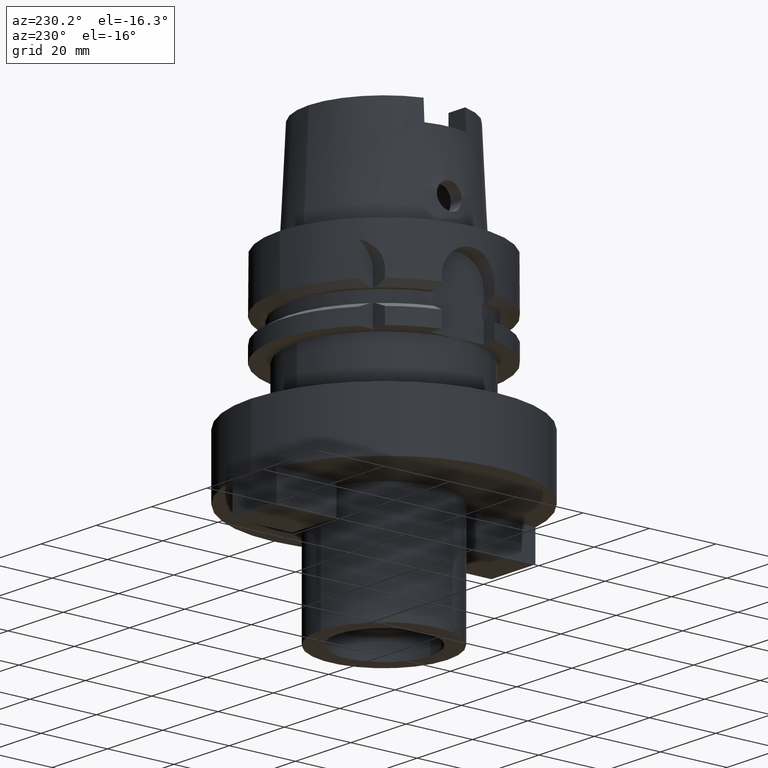
[diagram: clean part render]
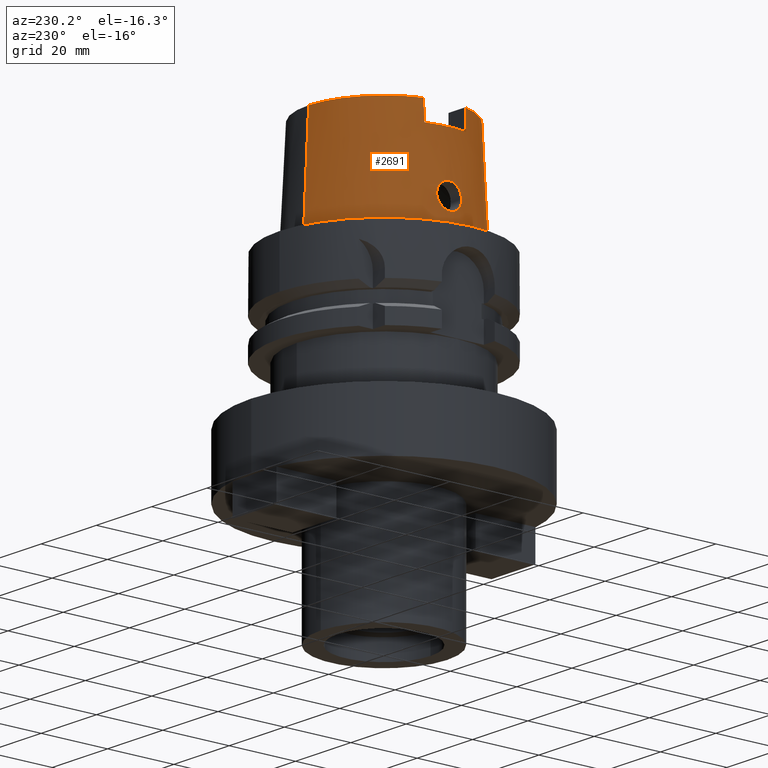
[diagram: same view with one face highlighted and labeled with its STEP entity id]
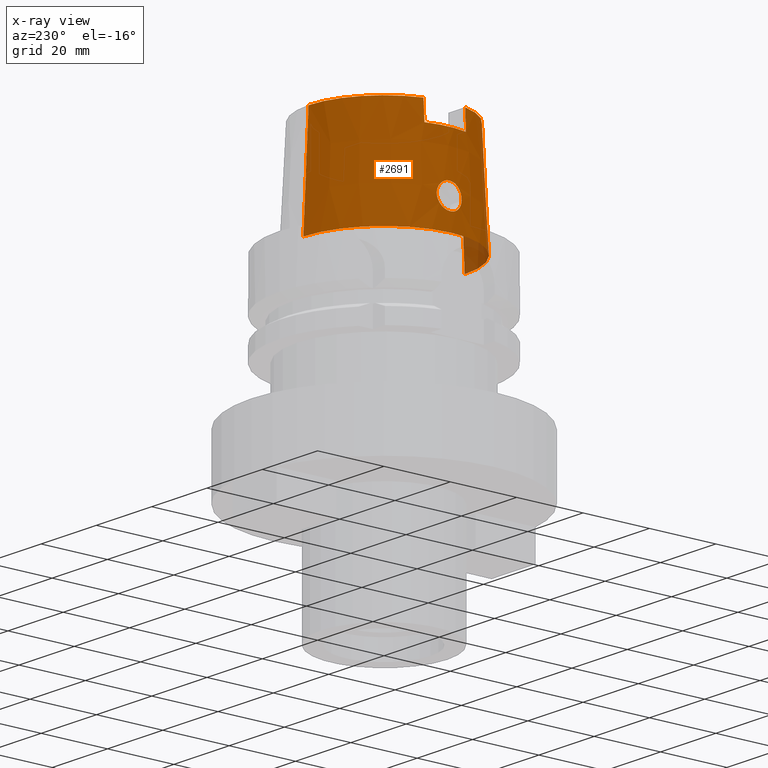
[diagram: x-ray of the same camera — body ghosted, the highlighted face saturated]
A machine part, auxiliary view. The second image highlights one B-rep face of the part: STEP entity #2691.
The next image is the same camera in x-ray: the body ghosted, the highlighted face saturated — about 3% of this face is hidden behind the body in this view.
In plain terms, the highlighted conical surface has half-angle 2.862 deg.
Its self-contained STEP definition (entity closure, byte-faithful):
#61=CARTESIAN_POINT('',(0.E0,0.E0,2.6E1));
#62=DIRECTION('',(0.E0,0.E0,-1.E0));
#63=DIRECTION('',(-9.621752876155E-1,-2.724311213903E-1,0.E0));
#64=AXIS2_PLACEMENT_3D('',#61,#62,#63);
#107=CARTESIAN_POINT('',(0.E0,0.E0,3.2E1));
#108=DIRECTION('',(0.E0,0.E0,-1.E0));
#109=DIRECTION('',(0.E0,-1.E0,0.E0));
#110=AXIS2_PLACEMENT_3D('',#107,#108,#109);
#180=CARTESIAN_POINT('',(0.E0,0.E0,3.2E1));
#181=DIRECTION('',(0.E0,0.E0,-1.E0));
#182=DIRECTION('',(-9.611492277717E-1,2.760292773492E-1,0.E0));
#183=AXIS2_PLACEMENT_3D('',#180,#181,#182);
#212=CARTESIAN_POINT('',(-2.183248717673E1,6.27E0,3.2E1));
#213=CARTESIAN_POINT('',(-2.186717206529E1,6.27E0,3.133327503497E1));
#214=CARTESIAN_POINT('',(-2.193652349223E1,6.27E0,2.999986376692E1));
#215=CARTESIAN_POINT('',(-2.204051301399E1,6.27E0,2.799986375667E1));
#216=CARTESIAN_POINT('',(-2.210981442606E1,6.27E0,2.666660835393E1));
#217=CARTESIAN_POINT('',(-2.214445626683E1,6.27E0,2.6E1));
#222=CARTESIAN_POINT('',(-2.214445626683E1,-6.27E0,2.6E1));
#223=CARTESIAN_POINT('',(-2.210981442606E1,-6.27E0,2.666660835394E1));
#224=CARTESIAN_POINT('',(-2.204051301399E1,-6.27E0,2.799986375668E1));
#225=CARTESIAN_POINT('',(-2.193652349223E1,-6.27E0,2.999986376693E1));
#226=CARTESIAN_POINT('',(-2.186717206529E1,-6.27E0,3.133327503497E1));
#227=CARTESIAN_POINT('',(-2.183248717673E1,-6.27E0,3.2E1));
#232=DIRECTION('',(0.E0,-4.993926899646E-2,-9.987522562738E-1));
#233=VECTOR('',#232,3.203997768114E1);
#234=CARTESIAN_POINT('',(0.E0,-2.271498175923E1,3.2E1));
#235=LINE('',#234,#233);
#239=CARTESIAN_POINT('',(-2.405252611747E1,0.E0,5.25E0));
#240=CARTESIAN_POINT('',(-2.405252611747E1,-3.241869752329E-1,5.25E0));
#241=CARTESIAN_POINT('',(-2.403484461036E1,-9.733222446710E-1,
5.334868901856E0));
#242=CARTESIAN_POINT('',(-2.396118973620E1,-1.880375353758E0,5.706253446326E0));
#243=CARTESIAN_POINT('',(-2.385421498809E1,-2.670800982405E0,6.306074557905E0));
#244=CARTESIAN_POINT('',(-2.373660725416E1,-3.279821761993E0,7.093321028008E0));
#245=CARTESIAN_POINT('',(-2.363225409814E1,-3.664161910177E0,8.016564222647E0));
#246=CARTESIAN_POINT('',(-2.356145186663E1,-3.793008677282E0,9.002632913278E0));
#247=CARTESIAN_POINT('',(-2.353285715397E1,-3.663802011223E0,9.980754357035E0));
#248=CARTESIAN_POINT('',(-2.354373497460E1,-3.286393022892E0,1.089300407602E1));
#249=CARTESIAN_POINT('',(-2.358182791376E1,-2.689315101338E0,1.167447830381E1));
#250=CARTESIAN_POINT('',(-2.362959140874E1,-1.904123066974E0,1.228102099172E1));
#251=CARTESIAN_POINT('',(-2.366788460881E1,-9.851234776865E-1,
1.266332049048E1));
#252=CARTESIAN_POINT('',(-2.367751368058E1,-3.283741913758E-1,1.275E1));
#253=CARTESIAN_POINT('',(-2.367751368058E1,0.E0,1.275E1));
#258=CARTESIAN_POINT('',(-2.367751368058E1,0.E0,1.275E1));
#259=CARTESIAN_POINT('',(-2.367751368058E1,3.273322433053E-1,1.275E1));
#260=CARTESIAN_POINT('',(-2.366793776228E1,9.825397915535E-1,1.266377848569E1));
#261=CARTESIAN_POINT('',(-2.362981346516E1,1.899980568797E0,1.228337985940E1));
#262=CARTESIAN_POINT('',(-2.358191685815E1,2.688069986616E0,1.167640504339E1));
#263=CARTESIAN_POINT('',(-2.354357443612E1,3.288800882523E0,1.088968257964E1));
#264=CARTESIAN_POINT('',(-2.353292925783E1,3.664984661369E0,9.975478486432E0));
#265=CARTESIAN_POINT('',(-2.356154877323E1,3.792202364408E0,9.003353485712E0));
#266=CARTESIAN_POINT('',(-2.363132347804E1,3.666199331831E0,8.028274763309E0));
#267=CARTESIAN_POINT('',(-2.373410501297E1,3.290358863715E0,7.112724654827E0));
#268=CARTESIAN_POINT('',(-2.385148275868E1,2.687596494603E0,6.322355827244E0));
#269=CARTESIAN_POINT('',(-2.395990280332E1,1.893956061740E0,5.712786499526E0));
#270=CARTESIAN_POINT('',(-2.403486346266E1,9.758552384108E-1,5.334739007094E0));
#271=CARTESIAN_POINT('',(-2.405252611747E1,3.244546404483E-1,5.25E0));
#272=CARTESIAN_POINT('',(-2.405252611747E1,0.E0,5.25E0));
#297=DIRECTION('',(0.E0,4.993926899646E-2,-9.987522562738E-1));
#298=VECTOR('',#297,3.203997768114E1);
#299=CARTESIAN_POINT('',(0.E0,2.271498175923E1,3.2E1));
#300=LINE('',#299,#298);
#366=CARTESIAN_POINT('',(0.E0,0.E0,9.094947017729E-13));
#367=DIRECTION('',(0.E0,0.E0,1.E0));
#368=DIRECTION('',(0.E0,1.E0,0.E0));
#369=AXIS2_PLACEMENT_3D('',#366,#367,#368);
#2185=CARTESIAN_POINT('',(-2.214445626683E1,6.27E0,2.6E1));
#2186=VERTEX_POINT('',#2185);
#2187=VERTEX_POINT('',#212);
#2188=CARTESIAN_POINT('',(-2.214445626683E1,-6.27E0,2.6E1));
#2189=VERTEX_POINT('',#2188);
#2190=CARTESIAN_POINT('',(-2.183248717673E1,-6.27E0,3.2E1));
#2191=VERTEX_POINT('',#2190);
#2192=CARTESIAN_POINT('',(0.E0,2.271498175923E1,3.2E1));
#2193=VERTEX_POINT('',#2192);
#2202=CARTESIAN_POINT('',(0.E0,-2.271498175923E1,3.2E1));
#2203=VERTEX_POINT('',#2202);
#2204=CARTESIAN_POINT('',(0.E0,-2.431503482329E1,6.075140390749E-13));
#2205=VERTEX_POINT('',#2204);
#2206=CARTESIAN_POINT('',(0.E0,2.431503482329E1,9.094947017729E-13));
#2207=VERTEX_POINT('',#2206);
#2208=VERTEX_POINT('',#239);
#2209=VERTEX_POINT('',#253);
#2667=CARTESIAN_POINT('',(0.E0,0.E0,1.6E1));
#2668=DIRECTION('',(0.E0,0.E0,-1.E0));
#2669=DIRECTION('',(0.E0,-1.E0,0.E0));
#2670=AXIS2_PLACEMENT_3D('',#2667,#2668,#2669);
#2671=CONICAL_SURFACE('',#2670,2.351500829126E1,2.8625E0);
#2672=ORIENTED_EDGE('',*,*,#2535,.T.);
#2673=ORIENTED_EDGE('',*,*,#2550,.F.);
#2674=ORIENTED_EDGE('',*,*,#2564,.T.);
#2675=ORIENTED_EDGE('',*,*,#2583,.F.);
#2677=ORIENTED_EDGE('',*,*,#2676,.T.);
#2679=ORIENTED_EDGE('',*,*,#2678,.F.);
#2681=ORIENTED_EDGE('',*,*,#2680,.F.);
#2682=ORIENTED_EDGE('',*,*,#2657,.F.);
#2683=EDGE_LOOP('',(#2672,#2673,#2674,#2675,#2677,#2679,#2681,#2682));
#2684=FACE_OUTER_BOUND('',#2683,.F.);
#2686=ORIENTED_EDGE('',*,*,#2685,.T.);
#2688=ORIENTED_EDGE('',*,*,#2687,.T.);
#2689=EDGE_LOOP('',(#2686,#2688));
#2690=FACE_BOUND('',#2689,.F.);
#65=CIRCLE('',#64,2.301499170874E1);
#111=CIRCLE('',#110,2.271498175923E1);
#184=CIRCLE('',#183,2.271498175923E1);
#218=B_SPLINE_CURVE_WITH_KNOTS('',3,(#212,#213,#214,#215,#216,#217),
.UNSPECIFIED.,.F.,.F.,(4,1,1,4),(0.E0,3.333333333333E-1,6.666666666667E-1,1.E0),
.UNSPECIFIED.);
#228=B_SPLINE_CURVE_WITH_KNOTS('',3,(#222,#223,#224,#225,#226,#227),
.UNSPECIFIED.,.F.,.F.,(4,1,1,4),(0.E0,3.333333333333E-1,6.666666666667E-1,1.E0),
.UNSPECIFIED.);
#254=B_SPLINE_CURVE_WITH_KNOTS('',3,(#239,#240,#241,#242,#243,#244,#245,#246,
#247,#248,#249,#250,#251,#252,#253),.UNSPECIFIED.,.F.,.F.,(4,1,1,1,1,1,1,1,1,1,
1,1,4),(0.E0,8.333333333333E-2,1.666666666667E-1,2.5E-1,3.333333333333E-1,
4.166666666667E-1,5.E-1,5.833333333333E-1,6.666666666667E-1,7.5E-1,
8.333333333333E-1,9.166666666667E-1,1.E0),.UNSPECIFIED.);
#273=B_SPLINE_CURVE_WITH_KNOTS('',3,(#258,#259,#260,#261,#262,#263,#264,#265,
#266,#267,#268,#269,#270,#271,#272),.UNSPECIFIED.,.F.,.F.,(4,1,1,1,1,1,1,1,1,1,
1,1,4),(0.E0,8.333333333333E-2,1.666666666667E-1,2.5E-1,3.333333333333E-1,
4.166666666667E-1,5.E-1,5.833333333333E-1,6.666666666667E-1,7.5E-1,
8.333333333333E-1,9.166666666667E-1,1.E0),.UNSPECIFIED.);
#370=CIRCLE('',#369,2.431503482329E1);
#2535=EDGE_CURVE('',#2187,#2186,#218,.T.);
#2550=EDGE_CURVE('',#2189,#2186,#65,.T.);
#2564=EDGE_CURVE('',#2189,#2191,#228,.T.);
#2583=EDGE_CURVE('',#2203,#2191,#111,.T.);
#2657=EDGE_CURVE('',#2187,#2193,#184,.T.);
#2676=EDGE_CURVE('',#2203,#2205,#235,.T.);
#2678=EDGE_CURVE('',#2207,#2205,#370,.T.);
#2680=EDGE_CURVE('',#2193,#2207,#300,.T.);
#2685=EDGE_CURVE('',#2208,#2209,#254,.T.);
#2687=EDGE_CURVE('',#2209,#2208,#273,.T.);
#2691=ADVANCED_FACE('',(#2684,#2690),#2671,.T.);